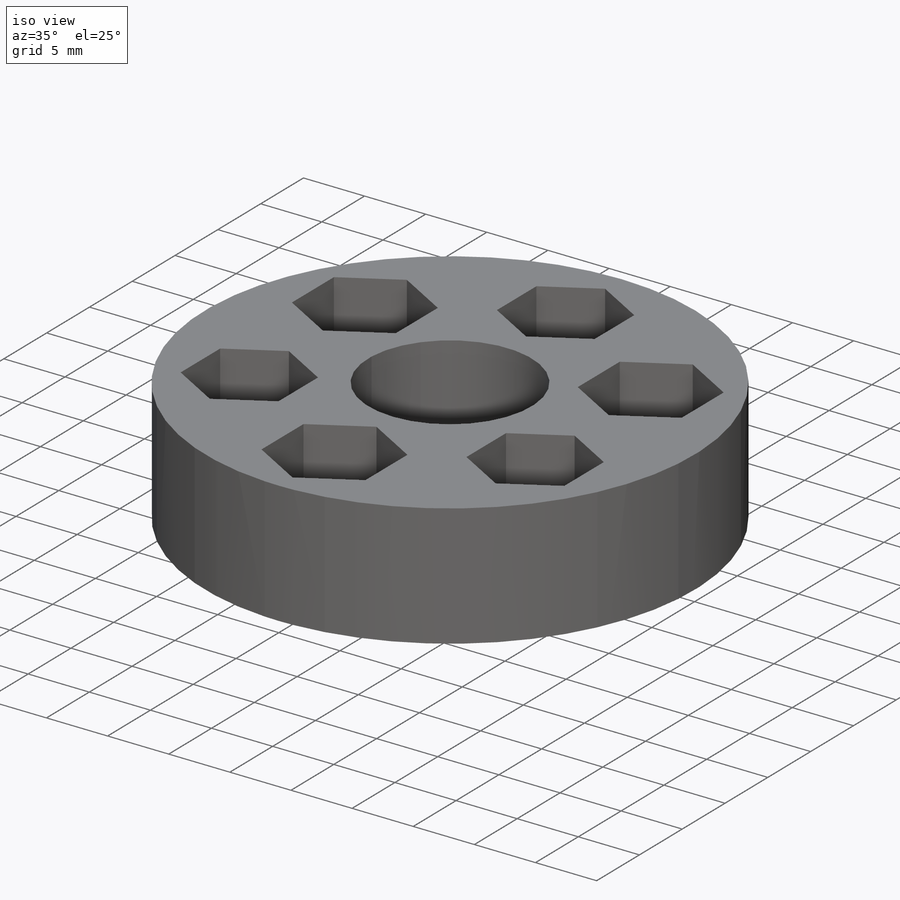
[diagram: iso view]
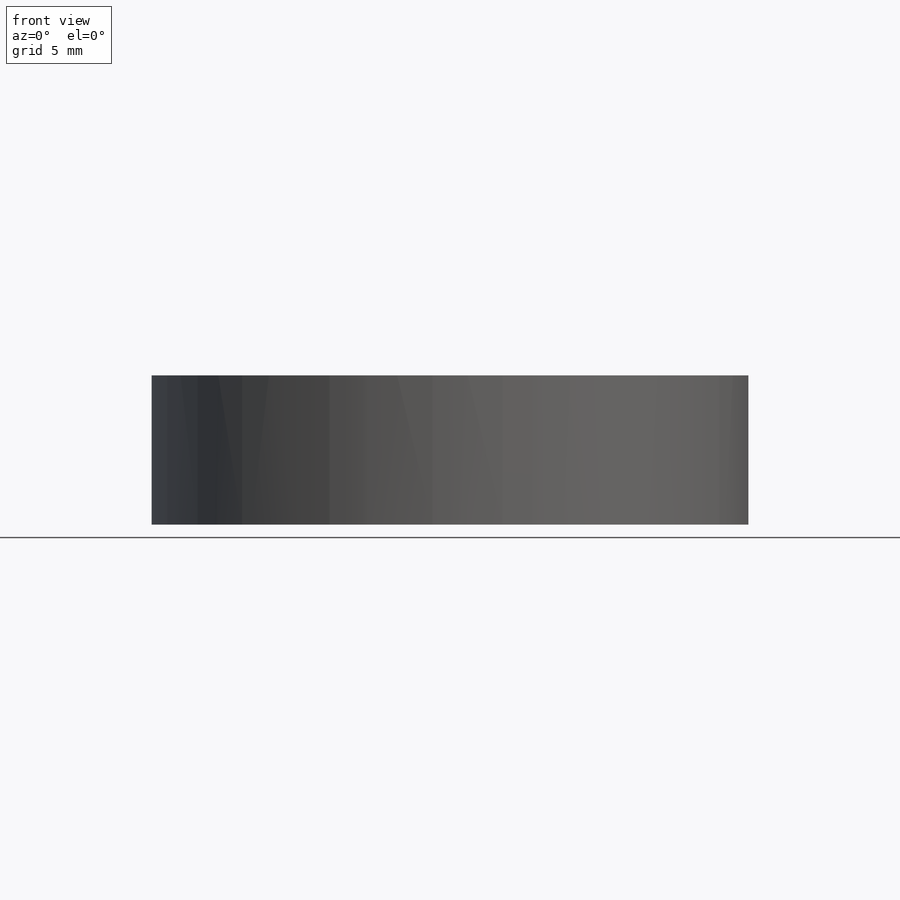
[diagram: front view]
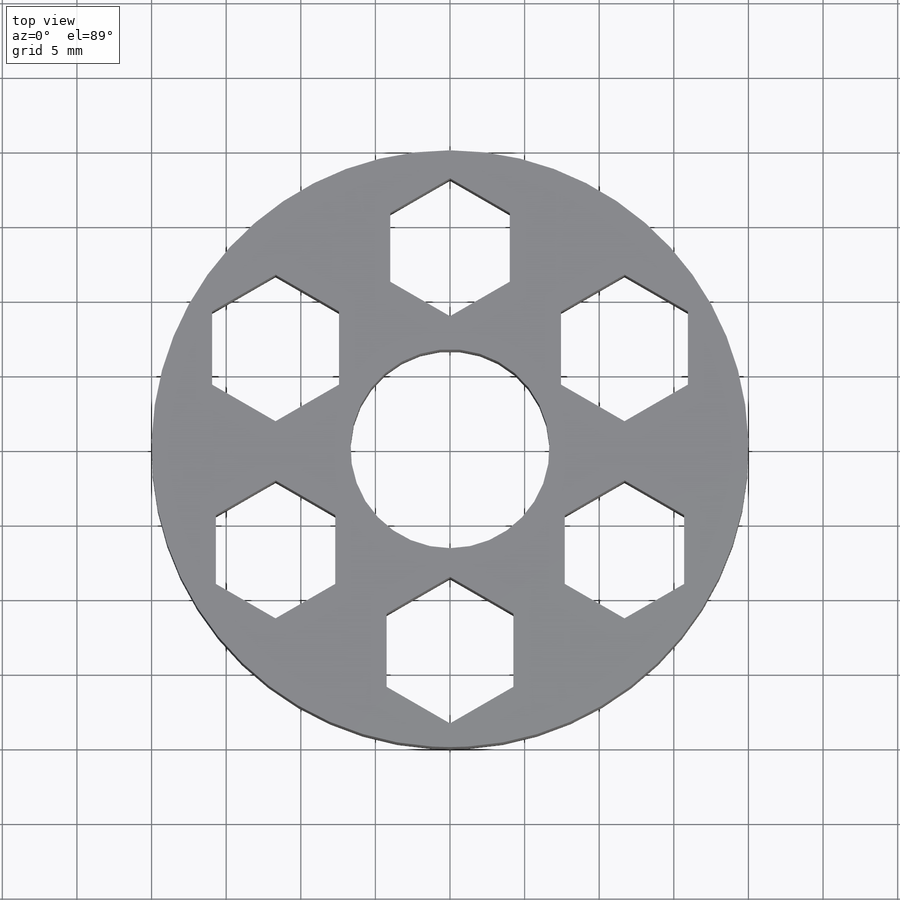
[diagram: top view]
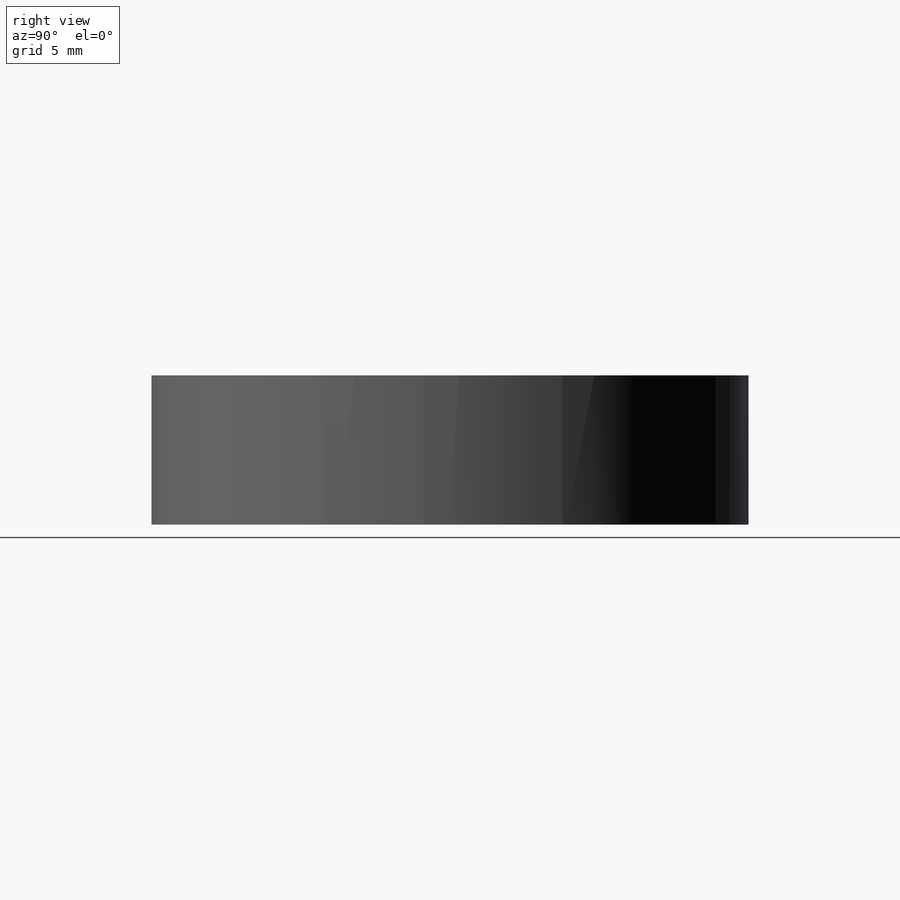
[diagram: right view]
SOLIDWORKS PART (.sldprt)
format: sldprt  version: not decoded by parser v0  size: 222,208 bytes
history: native  units: mm
features: sketch x4, plane x3, cut_extrude x3, material x1, extrude x1 (+9 scaffold rows collapsed)
feature tree (21):
  scaffold x9  (default folders/planes/origin — collapsed)
  material  "Material <sin especificar>"
  plane  "Alzado"
  plane  "Planta"
  plane  "Vista lateral"
  sketch  "Croquis1"  dims[D1=40.0mm]
  extrude  "Saliente-Extruir1"  Depth=10mm
  sketch  "Croquis2"  dims[D1=27.0mm D2=8.0mm D3=3.0]
  cut_extrude  "Cortar-Extruir1"  Depth=10mm
  sketch  "Croquis3"
  cut_extrude  "Cortar-Extruir2"  Depth=10mm
  sketch  "Croquis4"  dims[D1=27.0mm D2=8.5mm D3=3.0]
  cut_extrude  "Cortar-Extruir3"  Depth=10mm
decode coverage: 7 of 8 modeling features carry decoded parameters
note: suppression state not decoded; provenance and decode notes live in map.json
